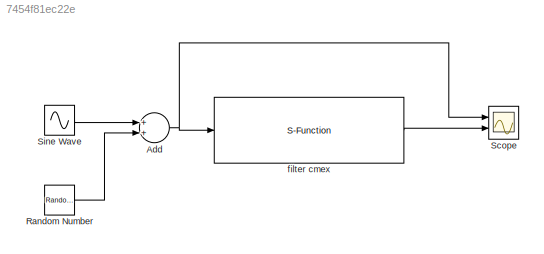
MODEL slx_7454f81ec22e
KIND model
BLOCK [Sum] Add
  InputSameDT = off
  OutDataTypeStr = Inherit: Inherit via internal rule
  Ports = [2, 1]
  SaturateOnIntegerOverflow = off
BLOCK [RandomNumber] Random Number
BLOCK [Scope] Scope
  DataFormat = StructureWithTime
  Floating = off
  NumInputPorts = 2
  Ports = [2]
  SampleTime = 0
  ShowLegends = off
  YMax = 5~5
  YMin = -5~-5
BLOCK [Sin] Sine Wave
  Ports = [0, 1]
BLOCK [S-Function] filter cmex
  EnableBusSupport = off
  FunctionName = sfun_c_filter
  Parameters = g_coef
  Ports = [1, 1]
NET Add:1 -> Scope:1, filter cmex:1
LINE Random Number:1 -> Add:2
LINE Sine Wave:1 -> Add:1
LINE filter cmex:1 -> Scope:2
note: NET lines group one-source signal fan-out (src -> all destinations, sorted); 1:1 wires keep LINE
